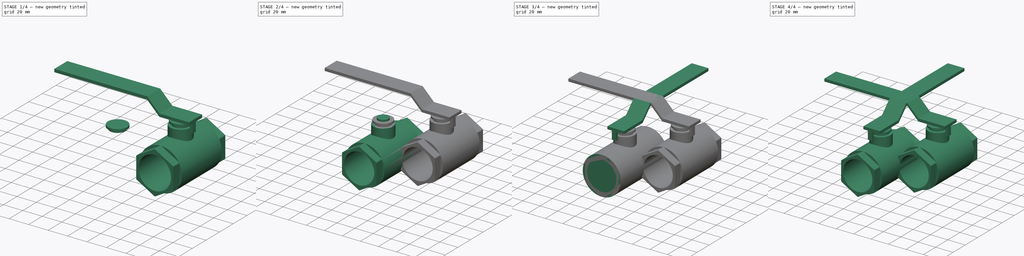
[diagram: build sequence overview — one tinted view per stage of 4, left to right]
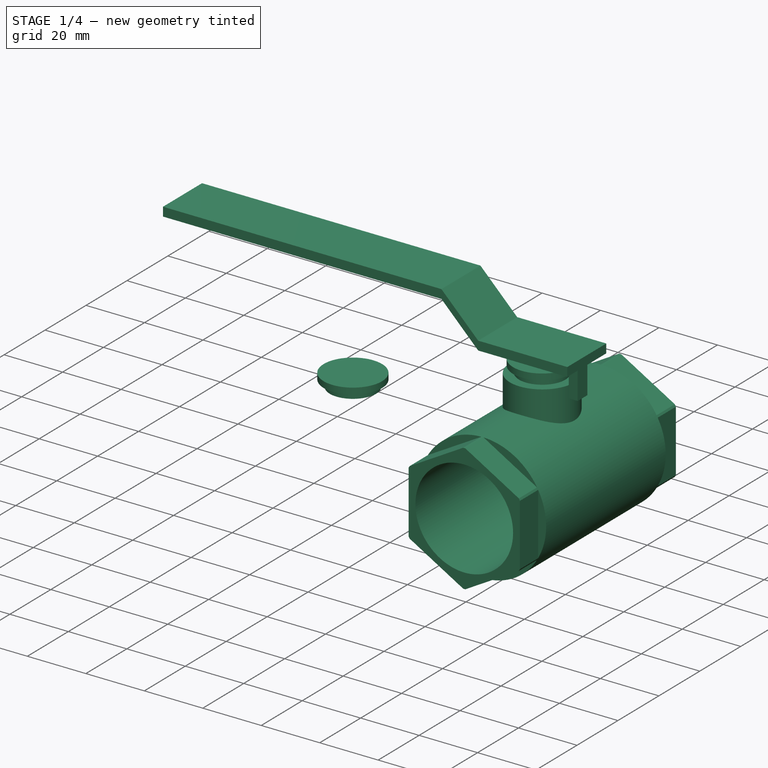
[diagram: stage 1 of 4 — iso view after this stage's code; geometry added in this stage tinted green]
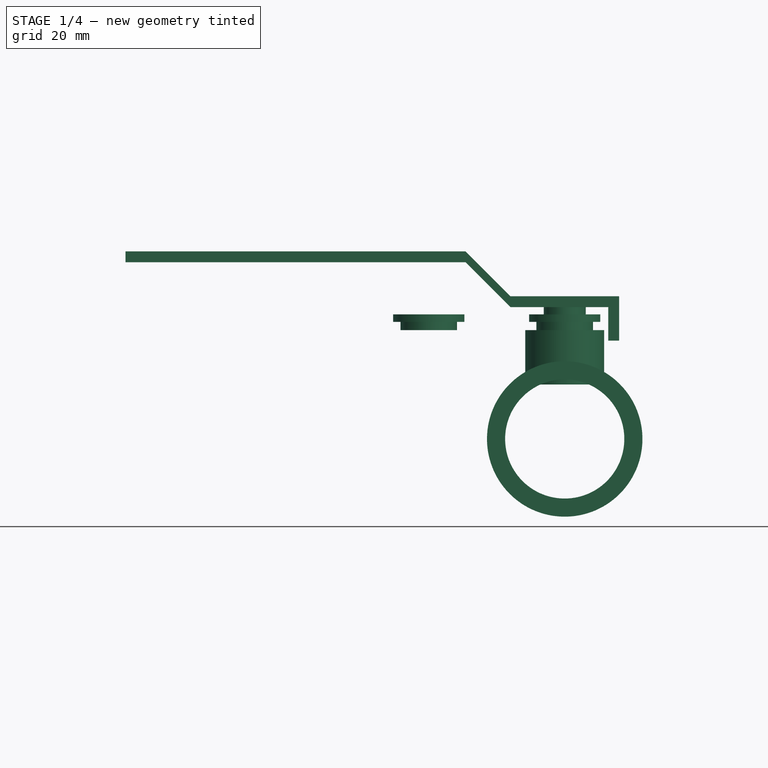
[diagram: stage 1 of 4 — front view after this stage's code; geometry added in this stage tinted green]
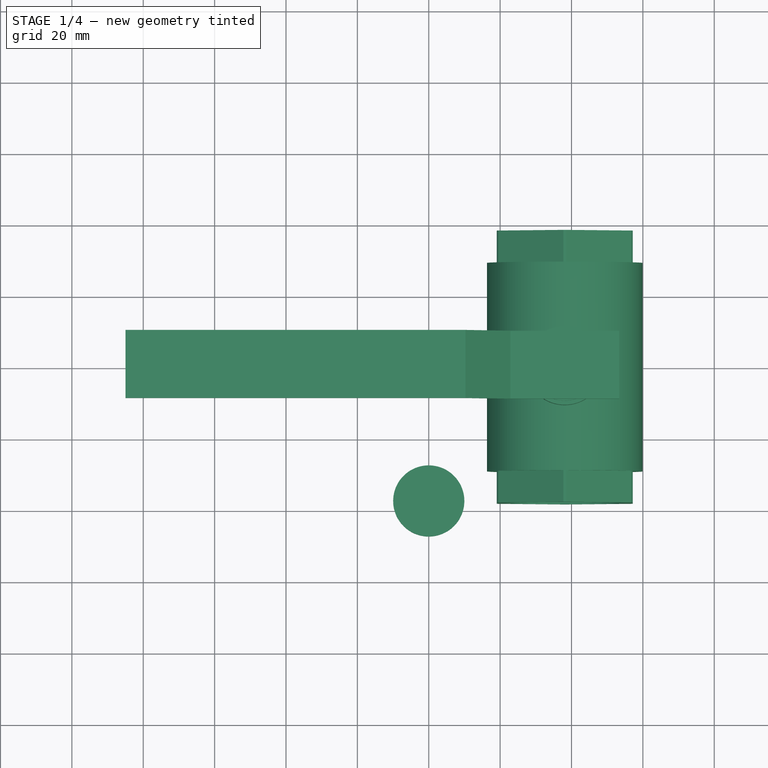
[diagram: stage 1 of 4 — top view after this stage's code; geometry added in this stage tinted green]
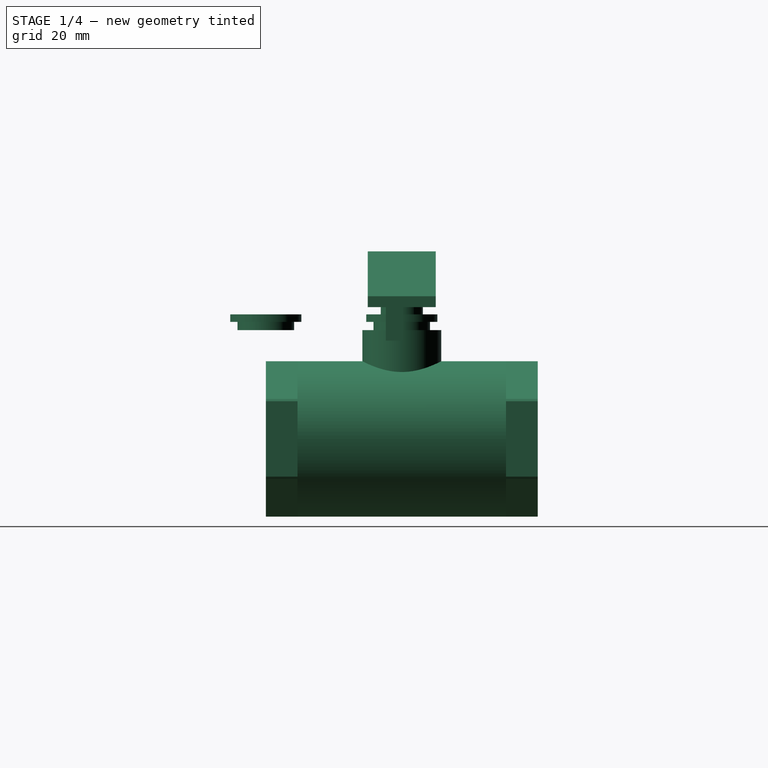
[diagram: stage 1 of 4 — right view after this stage's code; geometry added in this stage tinted green]
FCSTD DOCUMENT  (FreeCAD 0.16R6712 (Git))
Label: Ball Valve 1in NPT
License: All rights reserved
LicenseURL: http://en.wikipedia.org/wiki/All_rights_reserved
objects: Sketcher::SketchObject×6, Part::Cylinder×5, Part::Feature×4, PartDesign::Pocket×3, PartDesign::Pad×3, Part::Compound×2, App::FeaturePython×1
note: 29 computed .brp shape members not serialized (recipe doc carries the construction recipe); baked Part::Feature solids carry a one-line shape summary decoded from their .brp

FEATURE [Part::Cylinder] Cylinder002
  Angle = 360
  Height = 2.30993
  Placement = pos=(0,-38.1,30.5054) rot=(0,0,1;0rad)
  Radius = 7.9248
FEATURE [Part::Cylinder] Cylinder004
  Angle = 360
  Height = 2.1082
  Placement = pos=(0,-38.1,32.8153) rot=(0,0,1;0rad)
  Radius = 9.97199
FEATURE [Part::Feature] Compound001  label="Valve Assembly001"
  Placement = pos=(38.1,38.1,0) rot=(0,0,1;0rad)
  shape: bbox 43.56 x 76.2 x 56.7 mm, 37 faces, 4 solids (baked)
FEATURE [Part::Feature] Pad002001  label="Handle with Stop Tab001"
  Placement = pos=(38.1,0,34.9235) rot=(0,0,1;1.5708rad)
  shape: bbox 138.3 x 19.05 x 25.02 mm, 16 faces (baked)
FEATURE [App::FeaturePython] circularEdgeConstraint01  # a2plus constraint (typed FeaturePython)
  Object1 = Pad002001
  Object2 = Compound001
  SubElement1 = Edge1
  SubElement2 = Edge82
  Type = circularEdge
  directionConstraint = 0
  lockRotation = false
  offset = 0
FEATURE [Part::Compound] Compound002  label="Valve Closed"
  Links = -> [Compound001,Pad002001]
FEATURE [Part::Feature] Compound002001  label="Valve Closed001"
  shape: bbox 144.8 x 76.2 x 74.36 mm, 53 faces, 5 solids (baked)
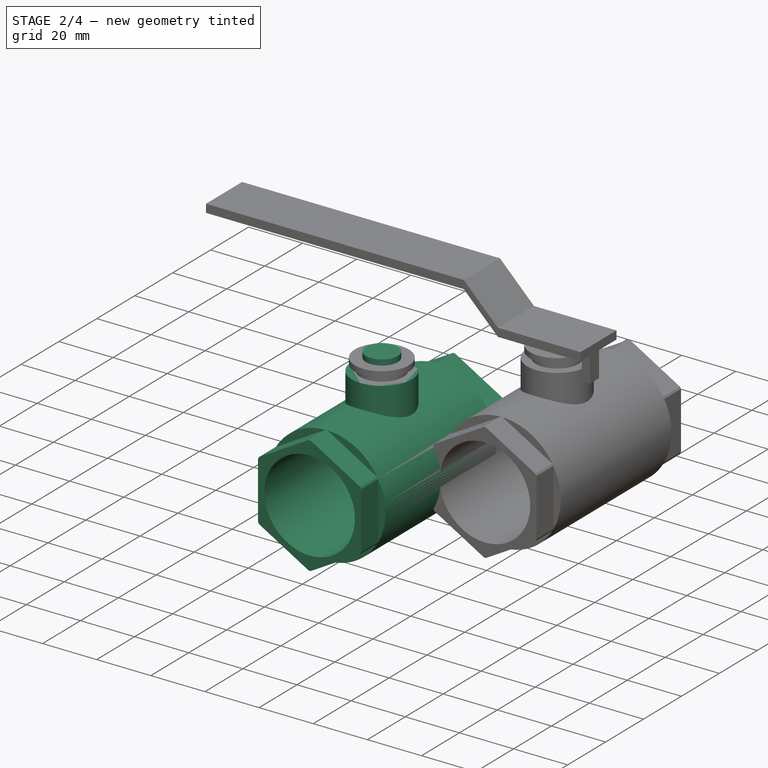
[diagram: stage 2 of 4 — iso view after this stage's code; geometry added in this stage tinted green]
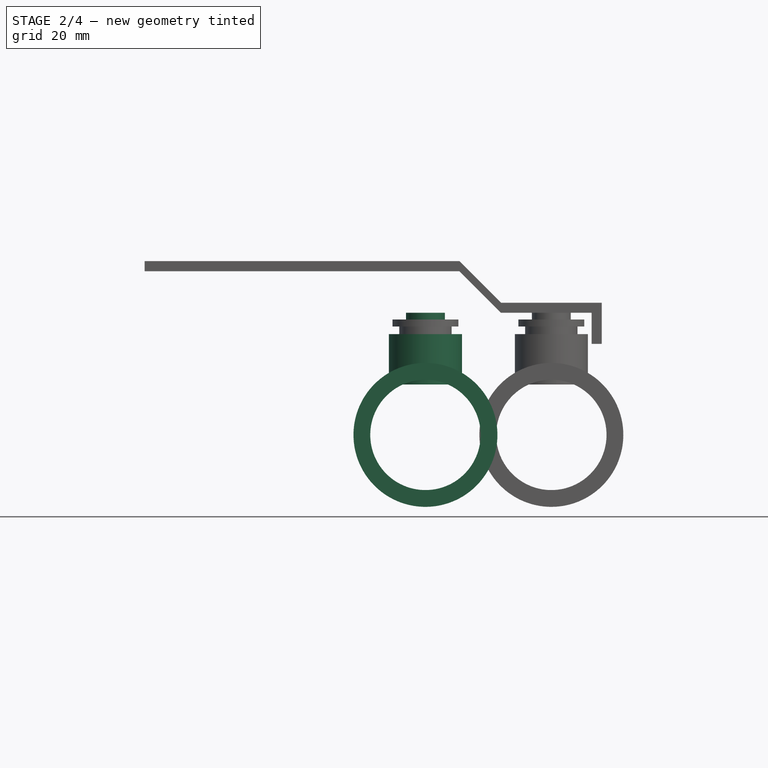
[diagram: stage 2 of 4 — front view after this stage's code; geometry added in this stage tinted green]
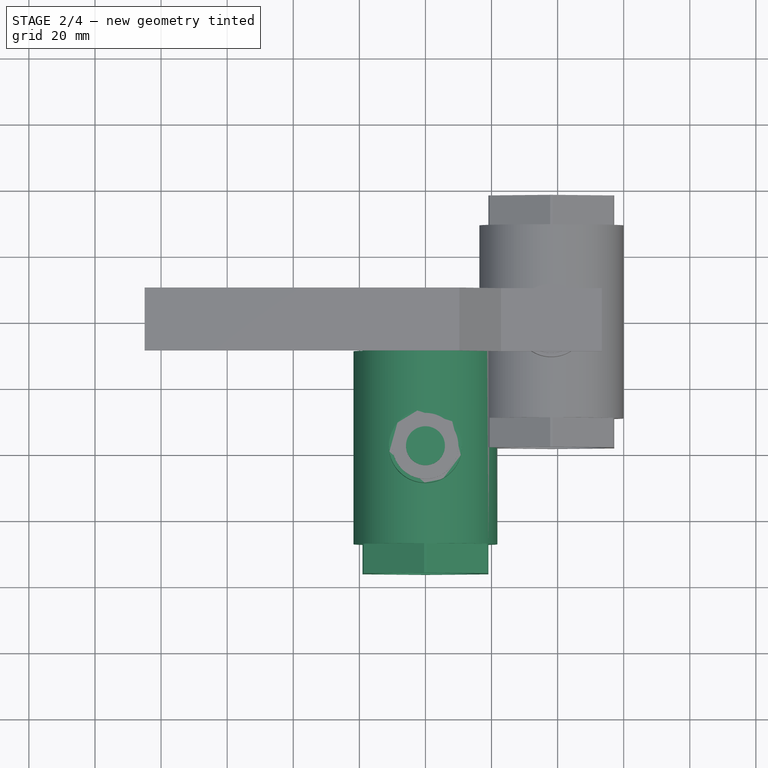
[diagram: stage 2 of 4 — top view after this stage's code; geometry added in this stage tinted green]
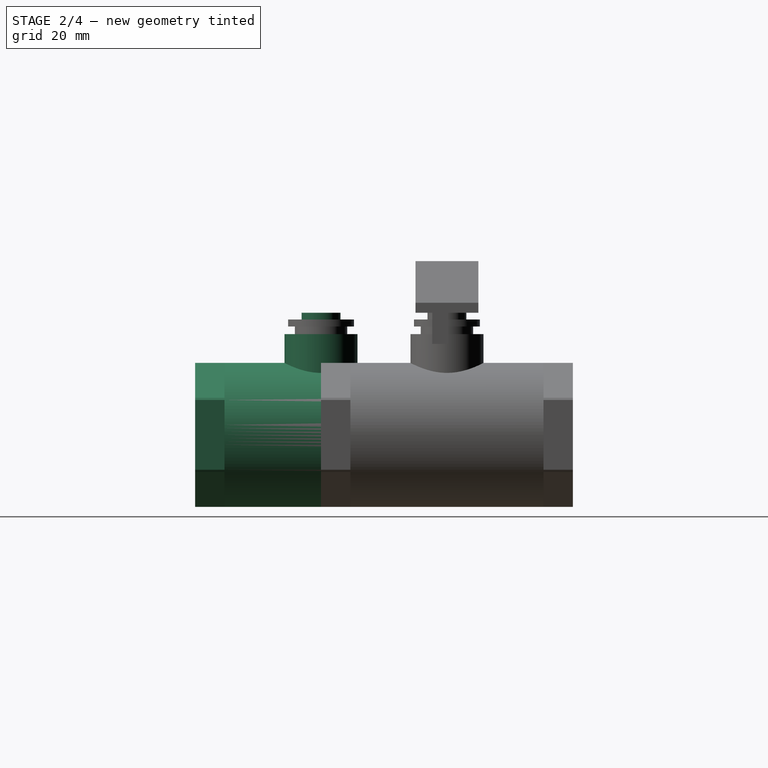
[diagram: stage 2 of 4 — right view after this stage's code; geometry added in this stage tinted green]
FEATURE [Part::Cylinder] Cylinder001
  Angle = 360
  Height = 15.24
  Placement = pos=(0,-38.1,15.2654) rot=(0,0,1;0rad)
  Radius = 11.049
FEATURE [Part::Cylinder] Cylinder003
  Angle = 360
  Height = 2.032
  Placement = pos=(0,-38.1,34.9235) rot=(0,0,1;0rad)
  Radius = 5.8928
FEATURE [Part::Feature] Pocket002001  label="Pocket003"
  Placement = pos=(0,0,0) rot=(1,0,0;1.5708rad)
  shape: bbox 43.56 x 76.2 x 43.56 mm, 28 faces (baked)
FEATURE [Part::Compound] Compound  label="Valve Assembly"
  Links = -> [Pocket002001,Cylinder002,Cylinder004,Cylinder001]
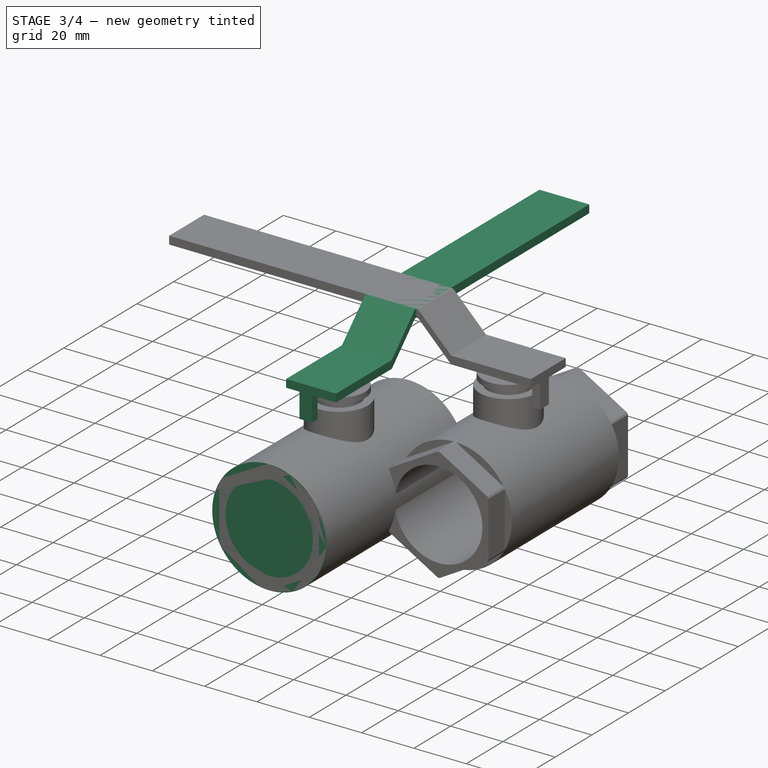
[diagram: stage 3 of 4 — iso view after this stage's code; geometry added in this stage tinted green]
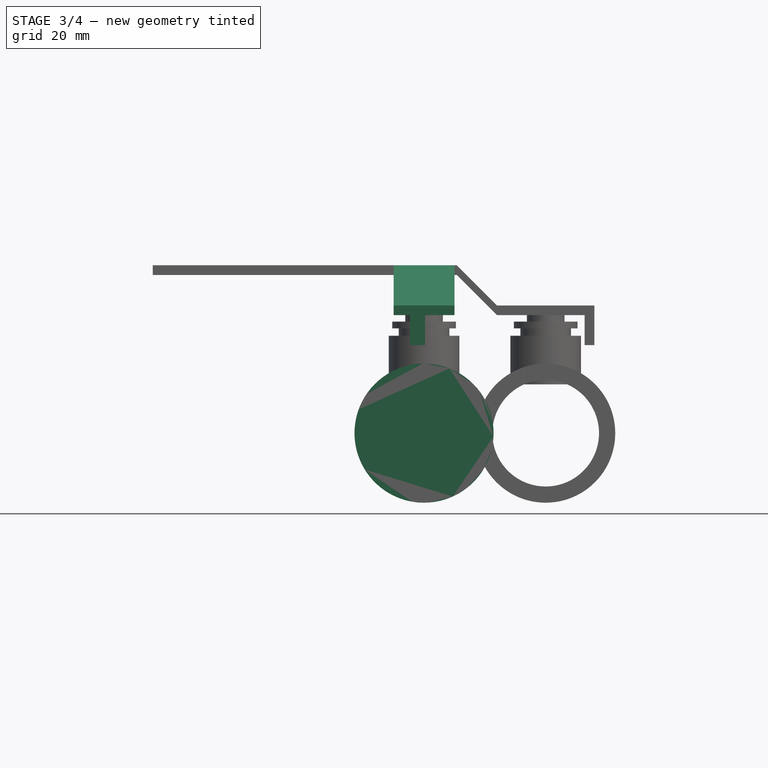
[diagram: stage 3 of 4 — front view after this stage's code; geometry added in this stage tinted green]
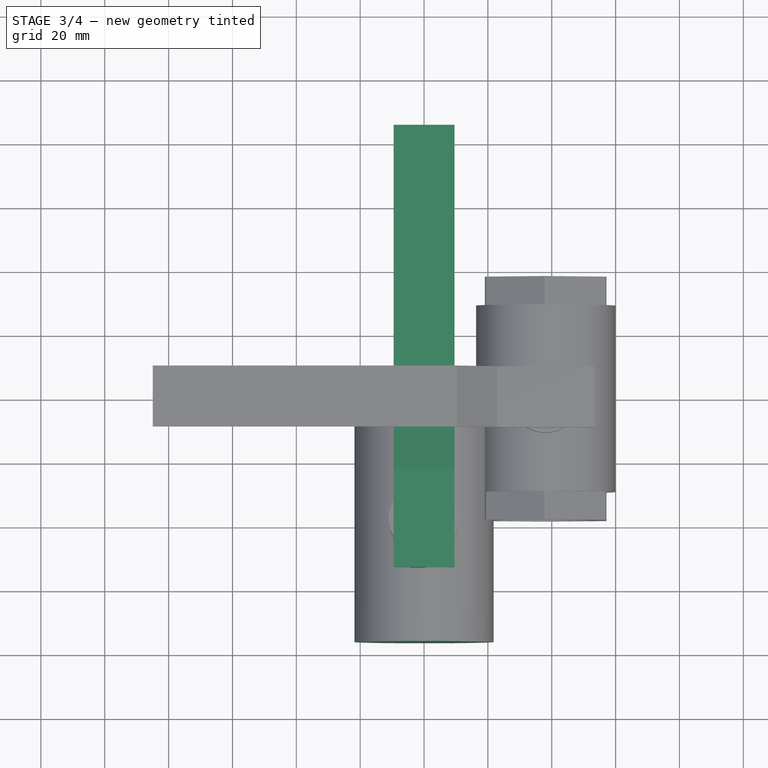
[diagram: stage 3 of 4 — top view after this stage's code; geometry added in this stage tinted green]
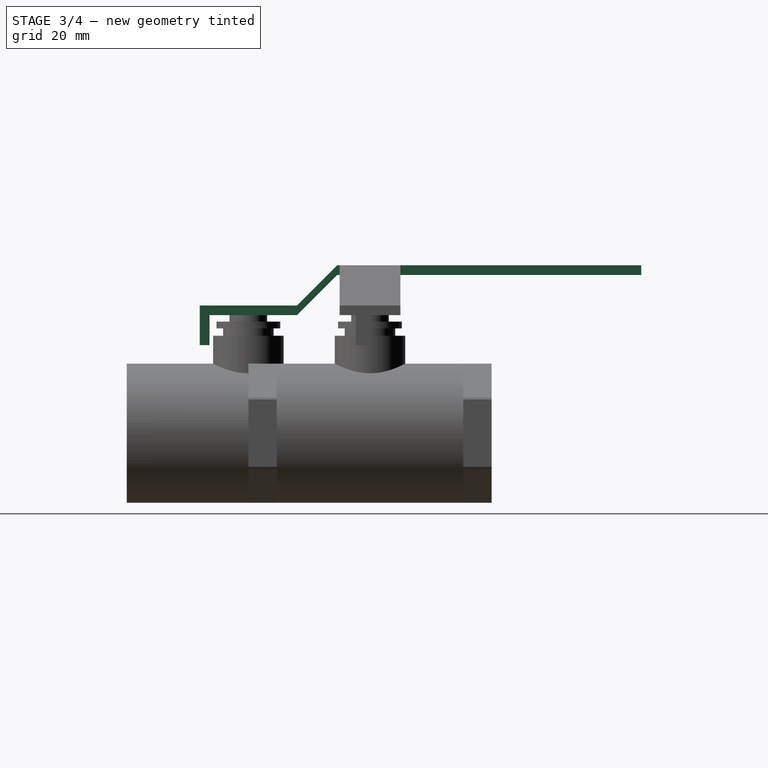
[diagram: stage 3 of 4 — right view after this stage's code; geometry added in this stage tinted green]
FEATURE [Part::Cylinder] Cylinder
  Angle = 360
  Height = 76.2
  Placement = pos=(0,0,0) rot=(1,0,0;1.5708rad)
  Radius = 21.7805
FEATURE [Sketcher::SketchObject] Sketch003
  Placement = pos=(0,-38.1,36.9555) rot=(0,0,1;0rad)
  Support = -> Cylinder003 [Face2]
  sketch-geometry (4):
    g0: LineSegment StartX=9.525 StartY=15.24 StartZ=0 EndX=9.525 EndY=-15.24 EndZ=0
    g1: LineSegment StartX=9.525 StartY=-15.24 StartZ=0 EndX=-9.525 EndY=-15.24 EndZ=0
    g2: LineSegment StartX=9.525 StartY=15.24 StartZ=0 EndX=-9.525 EndY=15.24 EndZ=0
    g3: LineSegment StartX=-9.525 StartY=15.24 StartZ=0 EndX=-9.525 EndY=-15.24 EndZ=0
  constraints (14):
    c: Vertical(g0)
    c: Coincident(g1,g0)
    c: Horizontal(g1)
    c: Coincident(g2,g0)
    c: Horizontal(g2)
    c: Coincident(g3,g2)
    c: Vertical(g3)
    c: Coincident(g3,g1)
    c: Equal(g2,g1)
    c: Equal(g3,g0)
    c: Symmetric(g2,g0,g-2)
    c: Symmetric(g2,g1,g-1)
    c: DistanceX(g2,g2) = 19.05
    c: DistanceY(g3,g3) = 30.48
FEATURE [PartDesign::Pad] Pad
  Length = 3.048
  Length2 = 100
  Placement = pos=(0,-38.1,34.9235) rot=(0,0,1;0rad)
  Sketch = -> Sketch003
  Type = 0
FEATURE [Sketcher::SketchObject] Sketch004
  ExternalGeometry = -> [Pad]
  Placement = pos=(-9.525,-38.1,34.9235) rot=(0.57735,-0.57735,-0.57735;2.0944rad)
  Support = -> Pad [Face7]
  sketch-geometry (7):
    g0: LineSegment StartX=-15.24 StartY=5.08 StartZ=0 EndX=-27.8124 EndY=17.6524 EndZ=0
    g1: LineSegment StartX=-15.24 StartY=2.032 StartZ=0 EndX=-27.8124 EndY=14.6044 EndZ=0
    g2: LineSegment StartX=-15.24 StartY=2.032 StartZ=0 EndX=-15.24 EndY=5.08 EndZ=0
    g3: LineSegment [constr] StartX=-27.8124 StartY=17.6524 StartZ=0 EndX=-27.8124 EndY=14.6044 EndZ=0
    g4: LineSegment StartX=-27.8124 StartY=17.6524 StartZ=0 EndX=-123.062 EndY=17.6524 EndZ=0
    g5: LineSegment StartX=-27.8124 StartY=14.6044 StartZ=0 EndX=-123.062 EndY=14.6044 EndZ=0
    g6: LineSegment StartX=-123.062 StartY=17.6524 StartZ=0 EndX=-123.062 EndY=14.6044 EndZ=0
  constraints (19):
    c: Coincident(g2,g1)
    c: Coincident(g2,g0)
    c: DistanceY(g2,g2) = 3.048
    c: Parallel(g0,g1)
    c: Vertical(g2)
    c: Coincident(g0,g-3)
    c: Angle(g2,g1) = 0.785398
    c: Coincident(g3,g0)
    c: Vertical(g3)
    c: Coincident(g3,g1)
    c: Distance(g0) = 17.78
    c: Coincident(g4,g0)
    c: Horizontal(g4)
    c: Coincident(g5,g1)
    c: Horizontal(g5)
    c: Equal(g4,g5)
    c: DistanceX(g4,g4) = 95.25
    c: Coincident(g6,g4)
    c: Coincident(g6,g5)
FEATURE [PartDesign::Pad] Pad001
  Length = 19.05
  Length2 = 100
  Placement = pos=(0,-38.1,34.9235) rot=(0,0,1;0rad)
  Reversed = true
  Sketch = -> Sketch004
  Type = 0
FEATURE [Sketcher::SketchObject] Sketch005
  ExternalGeometry = -> [Pad001]
  Placement = pos=(0,-38.1,36.9555) rot=(1,0,0;3.14159rad)
  Support = -> Pad001 [Face3]
  sketch-geometry (5):
    g0: LineSegment StartX=-4.445 StartY=15.24 StartZ=0 EndX=0.3048 EndY=15.24 EndZ=0
    g1: LineSegment StartX=0.3048 StartY=15.24 StartZ=0 EndX=0.3048 EndY=12.192 EndZ=0
    g2: LineSegment StartX=0.3048 StartY=12.192 StartZ=0 EndX=-4.445 EndY=12.192 EndZ=0
    g3: LineSegment StartX=-4.445 StartY=12.192 StartZ=0 EndX=-4.445 EndY=15.24 EndZ=0
    g4: LineSegment [constr] StartX=-9.525 StartY=15.24 StartZ=0 EndX=-4.445 EndY=15.24 EndZ=0
  constraints (14):
    c: Coincident(g0,g1)
    c: Coincident(g1,g2)
    c: Coincident(g2,g3)
    c: Coincident(g3,g0)
    c: Horizontal(g0)
    c: Horizontal(g2)
    c: Vertical(g1)
    c: Vertical(g3)
    c: Coincident(g4,g-3)
    c: Horizontal(g4)
    c: DistanceX(g4,g4) = 5.08
    c: Coincident(g0,g4)
    c: DistanceY(g3,g3) = 3.048
    c: DistanceX(g0,g0) = 4.7498
FEATURE [PartDesign::Pad] Pad002  label="Handle with Stop Tab"
  Length = 9.398
  Length2 = 100
  Placement = pos=(0,-38.1,34.9235) rot=(0,0,1;0rad)
  Sketch = -> Sketch005
  Type = 0
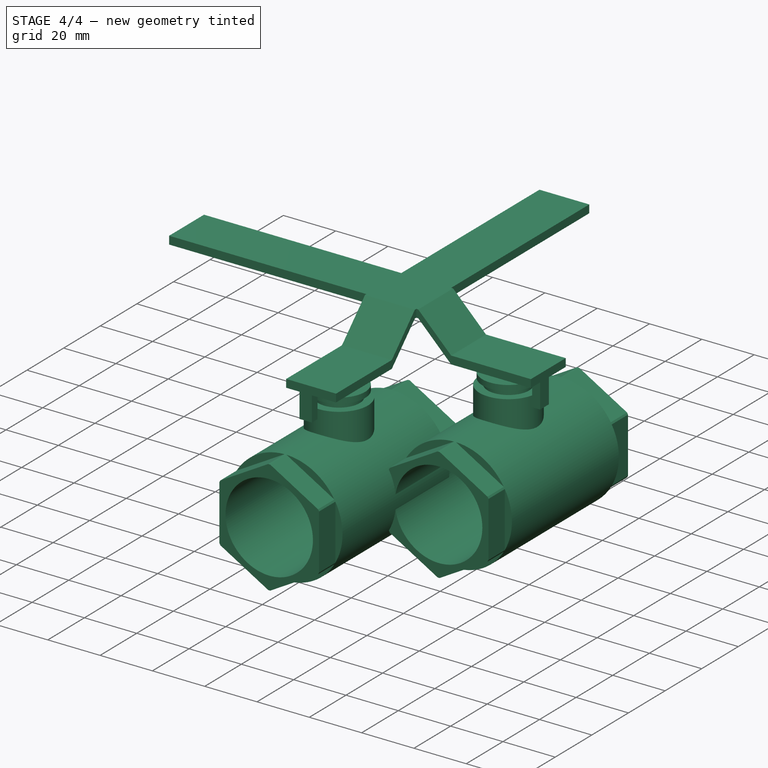
[diagram: stage 4 of 4 — iso view after this stage's code; geometry added in this stage tinted green]
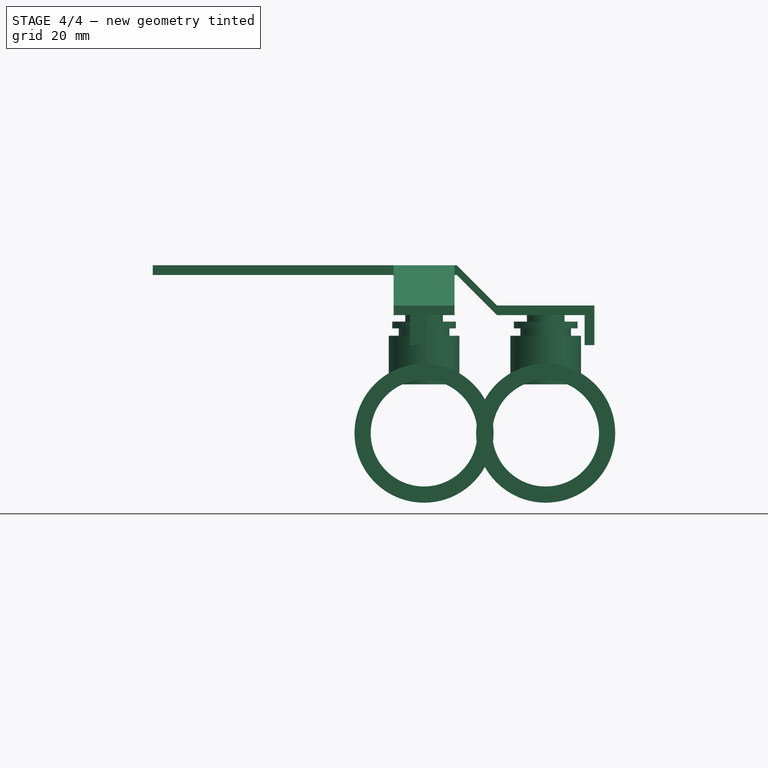
[diagram: stage 4 of 4 — front view after this stage's code; geometry added in this stage tinted green]
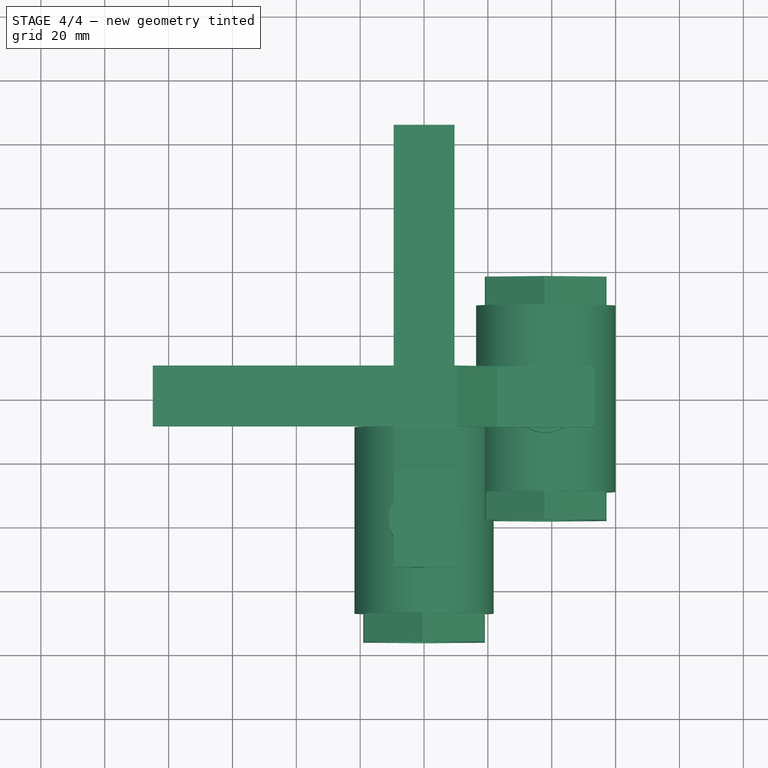
[diagram: stage 4 of 4 — top view after this stage's code; geometry added in this stage tinted green]
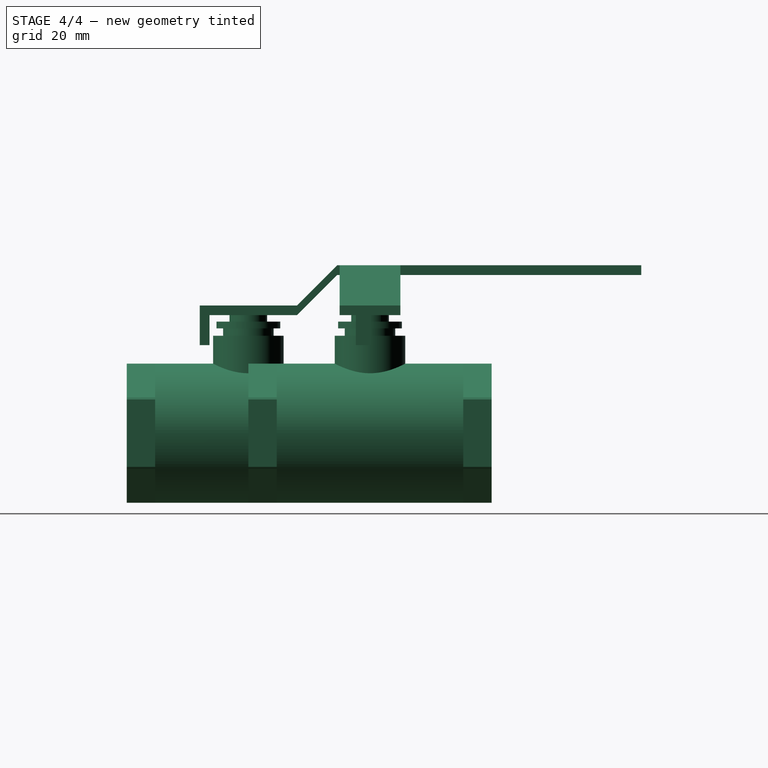
[diagram: stage 4 of 4 — right view after this stage's code; geometry added in this stage tinted green]
FEATURE [Sketcher::SketchObject] Sketch
  Placement = pos=(0,0,0) rot=(-1,0,0;1.5708rad)
  Support = -> Cylinder [Face3]
  sketch-geometry (1):
    g0: Circle CenterX=0 CenterY=0 CenterZ=0 NormalX=0 NormalY=0 NormalZ=1 Radius=16.7005
  constraints (2):
    c: Coincident(g0,g-1)
    c: Radius(g0) = 16.7005
FEATURE [PartDesign::Pocket] Pocket
  Length = 76.2
  Placement = pos=(0,0,0) rot=(1,0,0;1.5708rad)
  Sketch = -> Sketch
  Type = 0
FEATURE [Sketcher::SketchObject] Sketch001
  Placement = pos=(0,0,0) rot=(-1,0,0;1.5708rad)
  Support = -> Pocket [Face3]
  sketch-geometry (9):
    g0: LineSegment StartX=-19.05 StartY=-10.9985 StartZ=0 EndX=-19.05 EndY=10.9985 EndZ=0
    g1: LineSegment StartX=-19.05 StartY=10.9985 StartZ=0 EndX=0 EndY=21.997 EndZ=0
    g2: LineSegment StartX=0 StartY=21.997 StartZ=0 EndX=19.05 EndY=10.9985 EndZ=0
    g3: LineSegment StartX=19.05 StartY=10.9985 StartZ=0 EndX=19.05 EndY=-10.9985 EndZ=0
    g4: LineSegment StartX=19.05 StartY=-10.9985 StartZ=0 EndX=0 EndY=-21.997 EndZ=0
    g5: LineSegment StartX=0 StartY=-21.997 StartZ=0 EndX=-19.05 EndY=-10.9985 EndZ=0
    g6: Circle [constr] CenterX=0 CenterY=0 CenterZ=0 NormalX=0 NormalY=0 NormalZ=1 Radius=21.997
    g7: Circle CenterX=0 CenterY=0 CenterZ=0 NormalX=0 NormalY=0 NormalZ=1 Radius=22.225
    g8: LineSegment [constr] StartX=-19.05 StartY=10.9985 StartZ=0 EndX=19.05 EndY=10.9985 EndZ=0
  constraints (27):
    c: Vertical(g3)
    c: Equal(g0,g1)
    c: Equal(g1,g2)
    c: Equal(g2,g3)
    c: Equal(g3,g4)
    c: Equal(g4,g5)
    c: Coincident(g1,g0)
    c: Coincident(g2,g1)
    c: Coincident(g2,g3)
    c: Coincident(g3,g4)
    c: Coincident(g5,g0)
    c: PointOnObject(g1,g-2)
    c: PointOnObject(g0,g6)
    c: PointOnObject(g1,g6)
    c: PointOnObject(g2,g6)
    c: PointOnObject(g3,g6)
    c: Coincident(g4,g5)
    c: PointOnObject(g0,g6)
    c: PointOnObject(g4,g6)
    c: Coincident(g6,g-1)
    c: Coincident(g7,g-1)
    c: Radius(g7) = 22.225
    c: Symmetric(g0,g2,g-2)
    c: Coincident(g8,g0)
    c: Coincident(g8,g2)
    c: Horizontal(g8)
    c: DistanceX(g8,g8) = 38.1
FEATURE [PartDesign::Pocket] Pocket001
  Length = 8.89
  Placement = pos=(0,0,0) rot=(1,0,0;1.5708rad)
  Sketch = -> Sketch001
  Type = 0
FEATURE [Sketcher::SketchObject] Sketch002
  Placement = pos=(0,-76.2,0) rot=(1,0,0;1.5708rad)
  Support = -> Pocket001 [Face15]
  sketch-geometry (9):
    g0: LineSegment StartX=-19.05 StartY=-10.9985 StartZ=0 EndX=-19.05 EndY=10.9985 EndZ=0
    g1: LineSegment StartX=-19.05 StartY=10.9985 StartZ=0 EndX=0 EndY=21.997 EndZ=0
    g2: LineSegment StartX=0 StartY=21.997 StartZ=0 EndX=19.05 EndY=10.9985 EndZ=0
    g3: LineSegment StartX=19.05 StartY=10.9985 StartZ=0 EndX=19.05 EndY=-10.9985 EndZ=0
    g4: LineSegment StartX=19.05 StartY=-10.9985 StartZ=0 EndX=0 EndY=-21.997 EndZ=0
    g5: LineSegment StartX=0 StartY=-21.997 StartZ=0 EndX=-19.05 EndY=-10.9985 EndZ=0
    g6: Circle [constr] CenterX=0 CenterY=0 CenterZ=0 NormalX=0 NormalY=0 NormalZ=1 Radius=21.997
    g7: Circle CenterX=0 CenterY=0 CenterZ=0 NormalX=0 NormalY=0 NormalZ=1 Radius=22.225
    g8: LineSegment [constr] StartX=-19.05 StartY=10.9985 StartZ=0 EndX=19.05 EndY=10.9985 EndZ=0
  constraints (27):
    c: Vertical(g3)
    c: Equal(g0,g1)
    c: Equal(g1,g2)
    c: Equal(g2,g3)
    c: Equal(g3,g4)
    c: Equal(g4,g5)
    c: Coincident(g1,g0)
    c: Coincident(g2,g1)
    c: Coincident(g2,g3)
    c: Coincident(g3,g4)
    c: Coincident(g5,g0)
    c: PointOnObject(g1,g-2)
    c: PointOnObject(g0,g6)
    c: PointOnObject(g1,g6)
    c: PointOnObject(g2,g6)
    c: PointOnObject(g3,g6)
    c: Coincident(g4,g5)
    c: PointOnObject(g0,g6)
    c: PointOnObject(g4,g6)
    c: Coincident(g6,g-1)
    c: Coincident(g7,g-1)
    c: Radius(g7) = 22.225
    c: Symmetric(g0,g2,g-2)
    c: Coincident(g8,g0)
    c: Coincident(g8,g2)
    c: Horizontal(g8)
    c: DistanceX(g8,g8) = 38.1
FEATURE [PartDesign::Pocket] Pocket002
  Length = 8.89
  Placement = pos=(0,0,0) rot=(1,0,0;1.5708rad)
  Sketch = -> Sketch002
  Type = 0
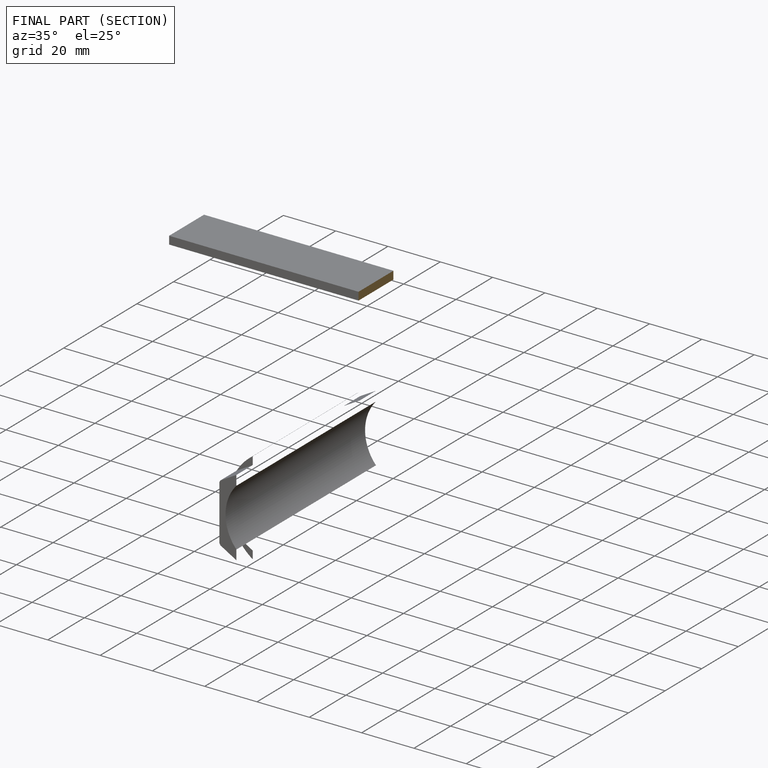
[diagram: finished part — half-section view (interior)]
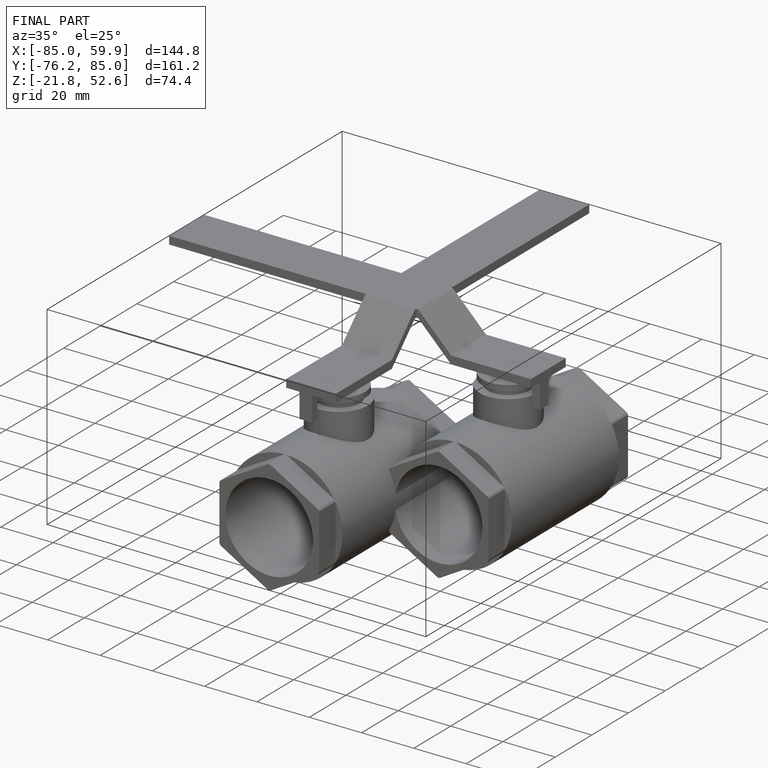
[diagram: finished part — iso view with bounding-box wireframe]
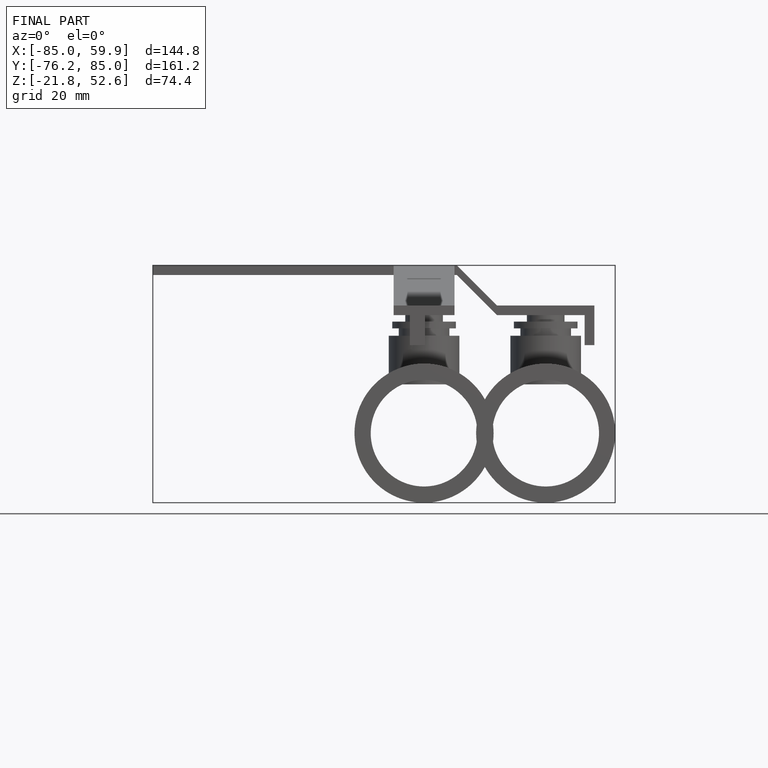
[diagram: finished part — front view with bounding-box wireframe]
